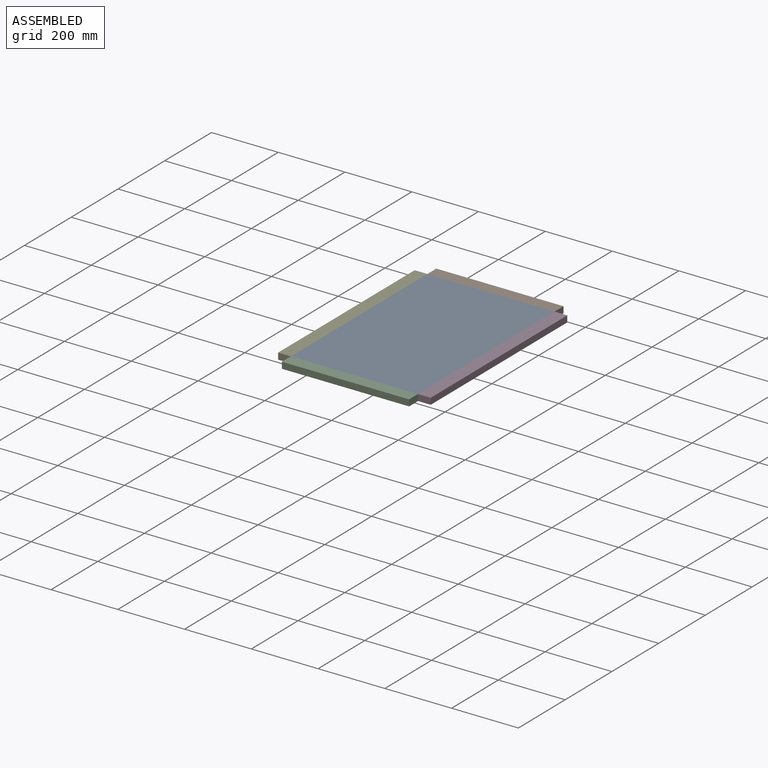
[diagram: assembled view]
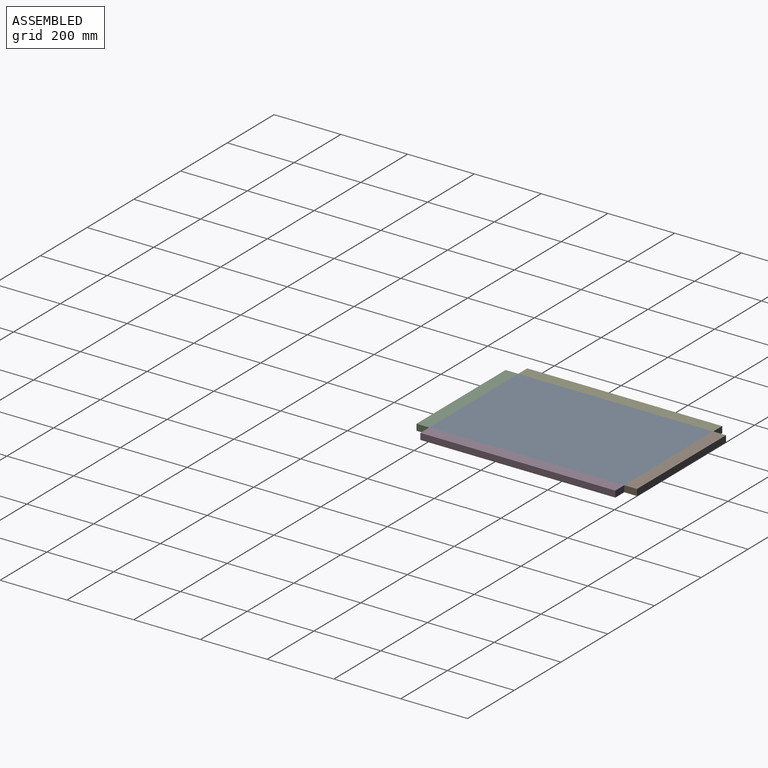
[diagram: assembled view, second angle]
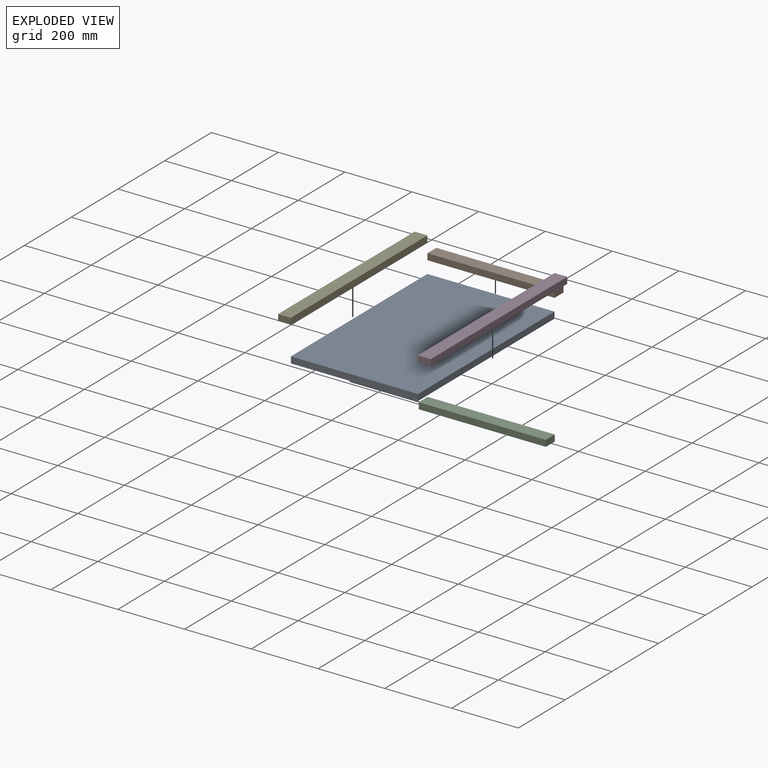
[diagram: exploded view]
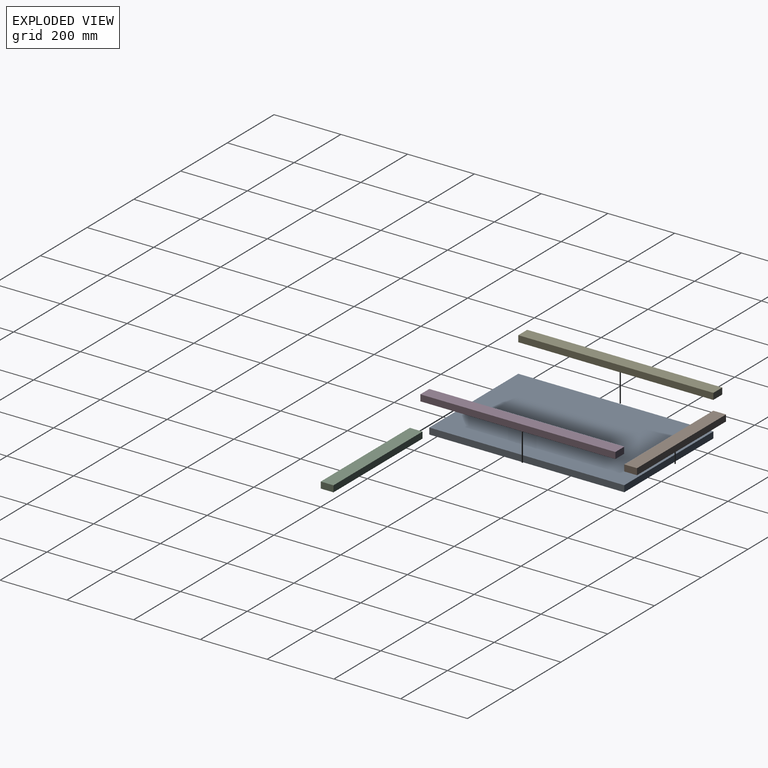
[diagram: exploded view, second angle]
ASSEMBLY  parts=5 mates=12
PART A: 6 faces, bbox 381x584.2x19.1 mm
  f0: plane 584.2x19.05mm, normal (-1,0,0), area 11129mm2, adj f1,f3,f4,f5
  f1: plane 381x19.05mm, normal (0,-1,0), area 7258mm2, adj f0,f2,f4,f5
  f2: plane 584.2x19.05mm, normal (1,0,0), area 11129mm2, adj f1,f3,f4,f5
  f3: plane 381x19.05mm, normal (0,1,0), area 7258mm2, adj f0,f2,f4,f5
  f4: plane 584.2x381mm, normal (0,0,1), area 222580.2mm2, adj f0,f1,f2,f3
  f5: plane 584.2x381mm, normal (0,0,-1), area 222580.2mm2, adj f0,f1,f2,f3
PART B: 6 faces, bbox 381x38.1x19.1 mm
  f0: plane 38.1x19.05mm, normal (-1,0,0), area 725.8mm2, adj f1,f3,f4,f5
  f1: plane 381x19.05mm, normal (0,-1,0), area 7258mm2, adj f0,f2,f4,f5
  f2: plane 38.1x19.05mm, normal (1,0,0), area 725.8mm2, adj f1,f3,f4,f5
  f3: plane 381x19.05mm, normal (0,1,0), area 7258mm2, adj f0,f2,f4,f5
  f4: plane 381x38.1mm, normal (0,0,1), area 14516.1mm2, adj f0,f1,f2,f3
  f5: plane 381x38.1mm, normal (0,0,-1), area 14516.1mm2, adj f0,f1,f2,f3
PART C: same geometry as B
PART D: 6 faces, bbox 38.1x584.2x19.1 mm
  f0: plane 38.1x19.05mm, normal (0,-1,0), area 725.8mm2, adj f1,f3,f4,f5
  f1: plane 584.2x19.05mm, normal (1,0,0), area 11129mm2, adj f0,f2,f4,f5
  f2: plane 38.1x19.05mm, normal (0,1,0), area 725.8mm2, adj f1,f3,f4,f5
  f3: plane 584.2x19.05mm, normal (-1,0,0), area 11129mm2, adj f0,f2,f4,f5
  f4: plane 584.2x38.1mm, normal (0,0,1), area 22258mm2, adj f0,f1,f2,f3
  f5: plane 584.2x38.1mm, normal (0,0,-1), area 22258mm2, adj f0,f1,f2,f3
PART E: same geometry as D
PLACE A rot(axis=(0,0,-1),180deg) t=(1324.38,376.54,-402.04)mm
PLACE B rot(axis=(0,1,0),180deg) t=(1324.38,-420.72,-382.99)mm
PLACE C rot(axis=(0,0,-1),180deg) t=(1324.38,589.6,-402.04)mm
PLACE D rot(axis=(1,0,0),180deg) t=(727.74,358.41,-382.99)mm
PLACE E rot(axis=(0,0,-1),180deg) t=(1540.03,358.41,-402.04)mm
MATE planar A.f4 <-> D.f5  axis (0,0,1) through (1324.38,84.44,-382.99)mm
MATE planar A.f4 <-> B.f5  axis (0,0,1) through (1133.88,84.44,-382.99)mm
MATE planar A.f4 <-> E.f4  axis (0,0,1) through (1133.88,84.44,-382.99)mm
MATE planar E.f2 <-> A.f3  axis (0,-1,0) through (924.33,-207.66,-392.52)mm
MATE planar B.f0 <-> A.f0  axis (1,0,0) through (1324.38,395.59,-392.52)mm
MATE planar A.f0 <-> D.f3  axis (1,0,0) through (1324.38,84.44,-392.52)mm
MATE planar C.f0 <-> A.f0  axis (1,0,0) through (1324.38,-226.71,-392.52)mm
MATE planar A.f2 <-> E.f3  axis (-1,0,0) through (943.38,84.44,-392.52)mm
MATE planar A.f1 <-> B.f1  axis (0,1,0) through (1133.88,376.54,-392.52)mm
MATE planar A.f4 <-> C.f4  axis (0,0,1) through (1133.88,84.44,-382.99)mm
MATE planar D.f2 <-> A.f3  axis (0,-1,0) through (1343.43,-207.66,-392.52)mm
MATE planar A.f3 <-> C.f1  axis (0,-1,0) through (1133.88,-207.66,-392.52)mm
